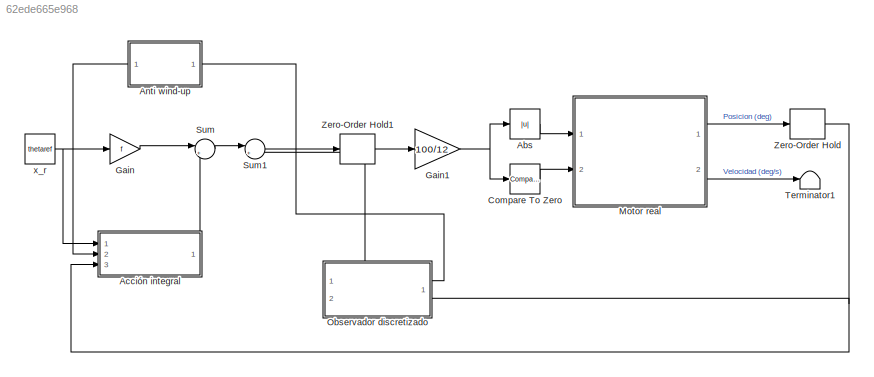
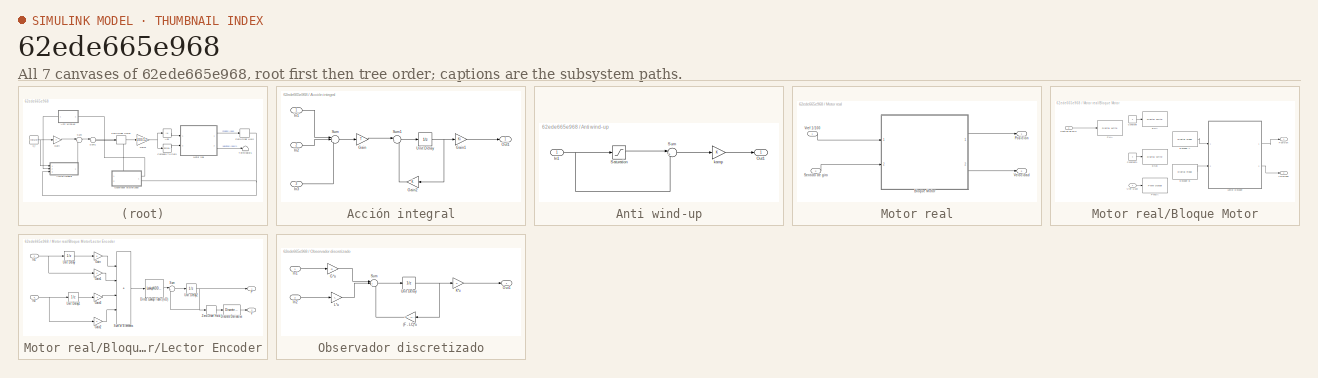
[diagram: thumbnail index - all 7 canvases of the model, root first then tree order]
MODEL slx_62ede665e968
KIND model
CONFIG AbsTol = auto
CONFIG EnableMultiTasking = on
CONFIG FixedStep = 1e-4
CONFIG MaxStep = auto
CONFIG MinStep = auto
CONFIG RelTol = 1e-3
CONFIG SampleTimeConstraint = Unconstrained
CONFIG SolverName = FixedStepAuto
CONFIG StartTime = 0.0
CONFIG StopTime = 15
BLOCK [Abs] Abs
  SaturateOnIntegerOverflow = off
BLOCK [SubSystem] Acción integral
  Ports = [3, 1]
  RequestExecContextInheritance = off
BLOCK [Gain] Acción integral/Gain
  Gain = T
BLOCK [Gain] Acción integral/Gain1
  Gain = Ki
BLOCK [Gain] Acción integral/Gain2
BLOCK [Inport] Acción integral/In1
BLOCK [Inport] Acción integral/In2
  Port = 2
BLOCK [Inport] Acción integral/In3
  Port = 3
BLOCK [Outport] Acción integral/Out1
BLOCK [Sum] Acción integral/Sum
  Inputs = |--+
  Ports = [3, 1]
BLOCK [Sum] Acción integral/Sum1
  Inputs = |++
  Ports = [2, 1]
BLOCK [UnitDelay] Acción integral/Unit Delay
  HasFrameUpgradeWarning = on
  SampleTime = 0.0001
BLOCK [SubSystem] Anti wind-up
  PortSchema = {"entries":[{"content":{"sides":[{"content":{"connectorIds":["Out1"]},"type":"ConnectorPlacement.EquallySpacedRectSide","uuid":"749271f6-54f1-4f24-9600-ea499e928faa"},{"content":{"connectorIds":["In1"],"side":"RIGHT"},"type":"ConnectorPlacement.EquallySpacedRectSide","uuid":"ee9435a8-dbe1-40c1-a065-bb113cdbdbca"},{"content":{"side":"TOP"},"type":"ConnectorPlacement.EquallySpacedRectSide","uuid":"5...<+348ch>
  Ports = [1, 1]
  RequestExecContextInheritance = off
BLOCK [Inport] Anti wind-up/In1
BLOCK [Outport] Anti wind-up/Out1
BLOCK [Saturate] Anti wind-up/Saturation
BLOCK [Sum] Anti wind-up/Sum
  Inputs = |+-
  Ports = [2, 1]
BLOCK [Gain] Anti wind-up/kamp
BLOCK [Reference] Compare To Zero  REF=simulink/Logic and Bit
Operations/Compare
To Zero
  Ports = [1, 1]
  SourceBlock = simulink/Logic and Bit\nOperations/Compare\nTo Zero
  SourceProductBaseCode = SL
  SourceType = Compare To Zero
BLOCK [Gain] Gain
  Gain = f
BLOCK [Gain] Gain1
  Gain = 100/12
BLOCK [SubSystem] Motor real
  Ports = [2, 2]
  RequestExecContextInheritance = off
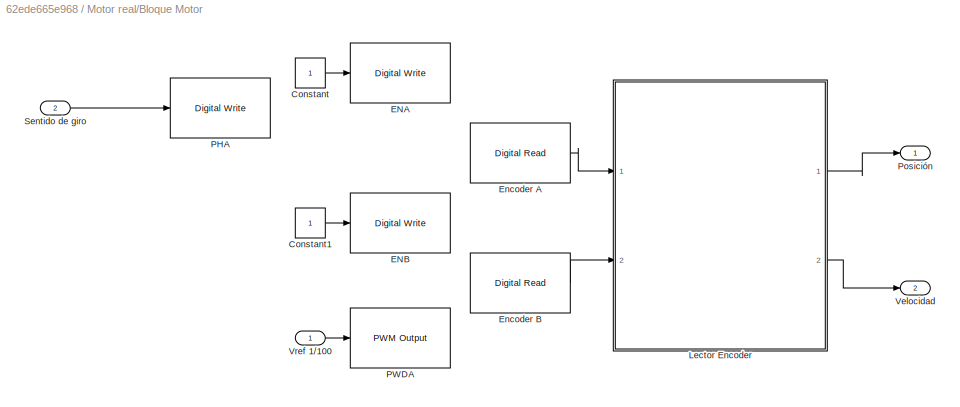
BLOCK [SubSystem] Motor real/Bloque Motor
  Ports = [2, 2]
  RequestExecContextInheritance = off
BLOCK [Constant] Motor real/Bloque Motor/Constant
BLOCK [Constant] Motor real/Bloque Motor/Constant1
BLOCK [Reference] Motor real/Bloque Motor/ENA  REF=mbedblockslib/Digital Write
  Ports = [1]
  SourceBlock = mbedblockslib/Digital Write
  SourceProductBaseCode = MICROBIT,NUCLEO,STMICRODIS
  SourceType = mbed.DigitalWrite
BLOCK [Reference] Motor real/Bloque Motor/ENB  REF=mbedblockslib/Digital Write
  Ports = [1]
  SourceBlock = mbedblockslib/Digital Write
  SourceProductBaseCode = MICROBIT,NUCLEO,STMICRODIS
  SourceType = mbed.DigitalWrite
BLOCK [Reference] Motor real/Bloque Motor/Encoder A  REF=mbedblockslib/Digital Read
  Ports = [0, 1]
  SourceBlock = mbedblockslib/Digital Read
  SourceProductBaseCode = MICROBIT,NUCLEO,STMICRODIS
  SourceType = mbed.DigitalRead
BLOCK [Reference] Motor real/Bloque Motor/Encoder B  REF=mbedblockslib/Digital Read
  Ports = [0, 1]
  SourceBlock = mbedblockslib/Digital Read
  SourceProductBaseCode = MICROBIT,NUCLEO,STMICRODIS
  SourceType = mbed.DigitalRead
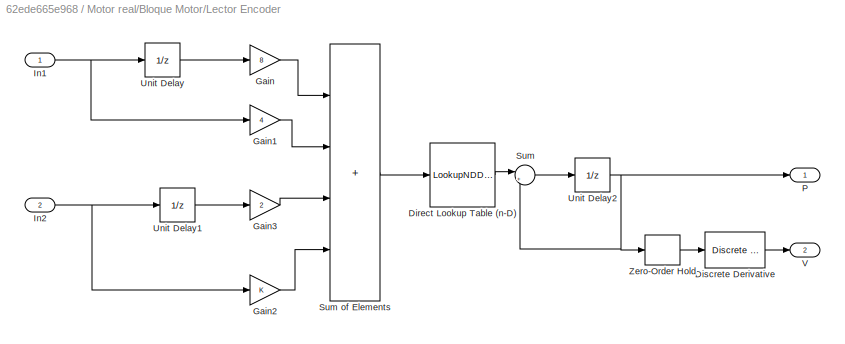
BLOCK [SubSystem] Motor real/Bloque Motor/Lector Encoder
  Ports = [2, 2]
  RequestExecContextInheritance = off
BLOCK [LookupNDDirect] Motor real/Bloque Motor/Lector Encoder/Direct Lookup Table (n-D)
  NumberOfTableDimensions = 1
  Ports = [1, 1]
  Table = [0,-1,1,0,1,0,0,-1,-1,0,0,1,0,1,-1,0]
BLOCK [Reference] Motor real/Bloque Motor/Lector Encoder/Discrete Derivative  REF=simulink/Discrete/Discrete Derivative
  Ports = [1, 1]
  SourceBlock = simulink/Discrete/Discrete Derivative
  SourceProductBaseCode = SL
  SourceType = Discrete Derivative
BLOCK [Gain] Motor real/Bloque Motor/Lector Encoder/Gain
  Gain = 8
BLOCK [Gain] Motor real/Bloque Motor/Lector Encoder/Gain1
  Gain = 4
BLOCK [Gain] Motor real/Bloque Motor/Lector Encoder/Gain2
BLOCK [Gain] Motor real/Bloque Motor/Lector Encoder/Gain3
  Gain = 2
BLOCK [Inport] Motor real/Bloque Motor/Lector Encoder/In1
BLOCK [Inport] Motor real/Bloque Motor/Lector Encoder/In2
  Port = 2
BLOCK [Outport] Motor real/Bloque Motor/Lector Encoder/P
BLOCK [Sum] Motor real/Bloque Motor/Lector Encoder/Sum
  Inputs = |++
  Ports = [2, 1]
BLOCK [Sum] Motor real/Bloque Motor/Lector Encoder/Sum of Elements
  IconShape = rectangular
  Inputs = ++++
  NameLocation = right
  OutDataTypeStr = double
  Ports = [4, 1]
BLOCK [UnitDelay] Motor real/Bloque Motor/Lector Encoder/Unit Delay
  HasFrameUpgradeWarning = on
  SampleTime = -1
BLOCK [UnitDelay] Motor real/Bloque Motor/Lector Encoder/Unit Delay1
  HasFrameUpgradeWarning = on
  SampleTime = -1
BLOCK [UnitDelay] Motor real/Bloque Motor/Lector Encoder/Unit Delay2
  HasFrameUpgradeWarning = on
  SampleTime = -1
BLOCK [Outport] Motor real/Bloque Motor/Lector Encoder/V
  Port = 2
BLOCK [ZeroOrderHold] Motor real/Bloque Motor/Lector Encoder/Zero-Order Hold
  SampleTime = 0.01
BLOCK [Reference] Motor real/Bloque Motor/PHA  REF=mbedblockslib/Digital Write
  Ports = [1]
  SourceBlock = mbedblockslib/Digital Write
  SourceProductBaseCode = MICROBIT,NUCLEO,STMICRODIS
  SourceType = mbed.DigitalWrite
BLOCK [Reference] Motor real/Bloque Motor/PWDA  REF=mbedblockslib/PWM Output
  Ports = [1]
  SourceBlock = mbedblockslib/PWM Output
  SourceProductBaseCode = MICROBIT,NUCLEO,STMICRODIS
  SourceType = mbed.PWMOutput
BLOCK [Outport] Motor real/Bloque Motor/Posición
BLOCK [Inport] Motor real/Bloque Motor/Sentido de giro
  Port = 2
BLOCK [Outport] Motor real/Bloque Motor/Velocidad
  Port = 2
BLOCK [Inport] Motor real/Bloque Motor/Vref 1//100
BLOCK [Outport] Motor real/Posición
BLOCK [Inport] Motor real/Sentido de giro
  Port = 2
BLOCK [Outport] Motor real/Velocidad
  Port = 2
BLOCK [Inport] Motor real/Vref 1//100
BLOCK [SubSystem] Observador discretizado
  PortSchema = {"entries":[{"content":{"sides":[{"content":{"connectorIds":["Out1"]},"type":"ConnectorPlacement.EquallySpacedRectSide","uuid":"6435dc11-cf89-4f05-818f-b2f26a414da8"},{"content":{"connectorIds":["In1","In2"],"side":"RIGHT"},"type":"ConnectorPlacement.EquallySpacedRectSide","uuid":"1bf393f3-1ca4-48a3-bb68-aa08f87c5096"},{"content":{"side":"TOP"},"type":"ConnectorPlacement.EquallySpacedRectSide","uu...<+228ch>
  Ports = [2, 1]
  RequestExecContextInheritance = off
BLOCK [Gain] Observador discretizado/(F - LC)*u
  Gain = (F - L*C)
  Multiplication = Matrix(K*u)
BLOCK [Gain] Observador discretizado/G*u
  Gain = G
  Multiplication = Matrix(K*u)
BLOCK [Inport] Observador discretizado/In1
BLOCK [Inport] Observador discretizado/In2
  Port = 2
BLOCK [Gain] Observador discretizado/K*u
  Gain = K
  Multiplication = Matrix(K*u)
BLOCK [Gain] Observador discretizado/L*u
  Gain = L
  Multiplication = Matrix(K*u)
BLOCK [Outport] Observador discretizado/Out1
BLOCK [Sum] Observador discretizado/Sum
  Inputs = |+++
  Ports = [3, 1]
BLOCK [UnitDelay] Observador discretizado/Unit Delay
  HasFrameUpgradeWarning = on
  SampleTime = 0.0001
BLOCK [Sum] Sum
  Inputs = |+-
  Ports = [2, 1]
BLOCK [Sum] Sum1
  Inputs = |+-
  Ports = [2, 1]
BLOCK [Terminator] Terminator1
BLOCK [ZeroOrderHold] Zero-Order Hold
  SampleTime = 0.0001
BLOCK [ZeroOrderHold] Zero-Order Hold1
  SampleTime = 0.0001
BLOCK [Constant] x_r
  Value = thetaref
LINE Abs:1 -> Motor real:1
LINE Acción integral/Gain1:1 -> Acción integral/Out1:1
LINE Acción integral/Gain2:1 -> Acción integral/Sum1:2
LINE Acción integral/Gain:1 -> Acción integral/Sum1:1
LINE Acción integral/In1:1 -> Acción integral/Sum:1
LINE Acción integral/In2:1 -> Acción integral/Sum:2
LINE Acción integral/In3:1 -> Acción integral/Sum:3
LINE Acción integral/Sum1:1 -> Acción integral/Unit Delay:1
LINE Acción integral/Sum:1 -> Acción integral/Gain:1
NET Acción integral/Unit Delay:1 -> Acción integral/Gain1:1, Acción integral/Gain2:1
LINE Acción integral:1 -> Sum:2
NET Anti wind-up/In1:1 -> Anti wind-up/Saturation:1, Anti wind-up/Sum:2
LINE Anti wind-up/Saturation:1 -> Anti wind-up/Sum:1
LINE Anti wind-up/Sum:1 -> Anti wind-up/kamp:1
LINE Anti wind-up/kamp:1 -> Anti wind-up/Out1:1
LINE Anti wind-up:1 -> Acción integral:2
LINE Compare To Zero:1 -> Motor real:2
NET Gain1:1 -> Abs:1, Compare To Zero:1
LINE Gain:1 -> Sum:1
LINE Motor real/Bloque Motor/Constant1:1 -> Motor real/Bloque Motor/ENB:1
LINE Motor real/Bloque Motor/Constant:1 -> Motor real/Bloque Motor/ENA:1
LINE Motor real/Bloque Motor/Encoder A:1 -> Motor real/Bloque Motor/Lector Encoder:1
LINE Motor real/Bloque Motor/Encoder B:1 -> Motor real/Bloque Motor/Lector Encoder:2
LINE Motor real/Bloque Motor/Lector Encoder/Direct Lookup Table (n-D):1 -> Motor real/Bloque Motor/Lector Encoder/Sum:1
LINE Motor real/Bloque Motor/Lector Encoder/Discrete Derivative:1 -> Motor real/Bloque Motor/Lector Encoder/V:1
LINE Motor real/Bloque Motor/Lector Encoder/Gain1:1 -> Motor real/Bloque Motor/Lector Encoder/Sum of Elements:2
LINE Motor real/Bloque Motor/Lector Encoder/Gain2:1 -> Motor real/Bloque Motor/Lector Encoder/Sum of Elements:4
LINE Motor real/Bloque Motor/Lector Encoder/Gain3:1 -> Motor real/Bloque Motor/Lector Encoder/Sum of Elements:3
LINE Motor real/Bloque Motor/Lector Encoder/Gain:1 -> Motor real/Bloque Motor/Lector Encoder/Sum of Elements:1
NET Motor real/Bloque Motor/Lector Encoder/In1:1 -> Motor real/Bloque Motor/Lector Encoder/Gain1:1, Motor real/Bloque Motor/Lector Encoder/Unit Delay:1
NET Motor real/Bloque Motor/Lector Encoder/In2:1 -> Motor real/Bloque Motor/Lector Encoder/Gain2:1, Motor real/Bloque Motor/Lector Encoder/Unit Delay1:1
LINE Motor real/Bloque Motor/Lector Encoder/Sum of Elements:1 -> Motor real/Bloque Motor/Lector Encoder/Direct Lookup Table (n-D):1
LINE Motor real/Bloque Motor/Lector Encoder/Sum:1 -> Motor real/Bloque Motor/Lector Encoder/Unit Delay2:1
LINE Motor real/Bloque Motor/Lector Encoder/Unit Delay1:1 -> Motor real/Bloque Motor/Lector Encoder/Gain3:1
NET Motor real/Bloque Motor/Lector Encoder/Unit Delay2:1 -> Motor real/Bloque Motor/Lector Encoder/P:1, Motor real/Bloque Motor/Lector Encoder/Sum:2, Motor real/Bloque Motor/Lector Encoder/Zero-Order Hold:1
LINE Motor real/Bloque Motor/Lector Encoder/Unit Delay:1 -> Motor real/Bloque Motor/Lector Encoder/Gain:1
LINE Motor real/Bloque Motor/Lector Encoder/Zero-Order Hold:1 -> Motor real/Bloque Motor/Lector Encoder/Discrete Derivative:1
LINE Motor real/Bloque Motor/Lector Encoder:1 -> Motor real/Bloque Motor/Posición:1
LINE Motor real/Bloque Motor/Lector Encoder:2 -> Motor real/Bloque Motor/Velocidad:1
LINE Motor real/Bloque Motor/Sentido de giro:1 -> Motor real/Bloque Motor/PHA:1
LINE Motor real/Bloque Motor/Vref 1//100:1 -> Motor real/Bloque Motor/PWDA:1
LINE Motor real/Bloque Motor:1 -> Motor real/Posición:1
LINE Motor real/Bloque Motor:2 -> Motor real/Velocidad:1
LINE Motor real/Sentido de giro:1 -> Motor real/Bloque Motor:2
LINE Motor real/Vref 1//100:1 -> Motor real/Bloque Motor:1
LINE Motor real:1 -> Zero-Order Hold:1
LINE Motor real:2 -> Terminator1:1
LINE Observador discretizado/(F - LC)*u:1 -> Observador discretizado/Sum:3
LINE Observador discretizado/G*u:1 -> Observador discretizado/Sum:1
LINE Observador discretizado/In1:1 -> Observador discretizado/G*u:1
LINE Observador discretizado/In2:1 -> Observador discretizado/L*u:1
LINE Observador discretizado/K*u:1 -> Observador discretizado/Out1:1
LINE Observador discretizado/L*u:1 -> Observador discretizado/Sum:2
LINE Observador discretizado/Sum:1 -> Observador discretizado/Unit Delay:1
NET Observador discretizado/Unit Delay:1 -> Observador discretizado/(F - LC)*u:1, Observador discretizado/K*u:1
LINE Observador discretizado:1 -> Sum1:2
NET Sum1:1 -> Anti wind-up:1, Observador discretizado:1, Zero-Order Hold1:1
LINE Sum:1 -> Sum1:1
LINE Zero-Order Hold1:1 -> Gain1:1
NET Zero-Order Hold:1 -> Acción integral:3, Observador discretizado:2
NET x_r:1 -> Acción integral:1, Gain:1
note: NET lines group one-source signal fan-out (src -> all destinations, sorted); 1:1 wires keep LINE
